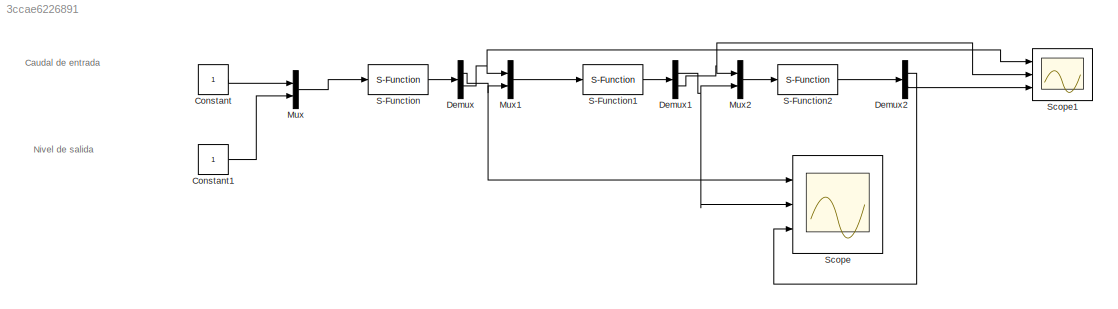
MODEL slx_3ccae6226891
KIND model
BLOCK [Constant] Constant
BLOCK [Constant] Constant1
BLOCK [Demux] Demux
  DisplayOption = bar
  Outputs = 2
  Ports = [1, 2]
BLOCK [Demux] Demux1
  DisplayOption = bar
  Outputs = 2
  Ports = [1, 2]
BLOCK [Demux] Demux2
  DisplayOption = bar
  Outputs = 2
  Ports = [1, 2]
BLOCK [Mux] Mux
  DisplayOption = bar
  Inputs = 2
  Ports = [2, 1]
BLOCK [Mux] Mux1
  DisplayOption = bar
  Inputs = 2
  Ports = [2, 1]
BLOCK [Mux] Mux2
  DisplayOption = bar
  Inputs = 2
  Ports = [2, 1]
BLOCK [S-Function] S-Function
  EnableBusSupport = off
  FunctionName = tanque
  Parameters = 1 8 1 5
  Ports = [1, 1]
  SFunctionDeploymentMode = off
BLOCK [S-Function] S-Function1
  EnableBusSupport = off
  FunctionName = tanque
  Parameters = 1 8 1 3
  Ports = [1, 1]
  SFunctionDeploymentMode = off
BLOCK [S-Function] S-Function2
  EnableBusSupport = off
  FunctionName = tanque
  Parameters = 10 8 1 6
  Ports = [1, 1]
  SFunctionDeploymentMode = off
BLOCK [Scope] Scope
  DataFormat = StructureWithTime
  Decimation = 1
  Grid = on
  LimitDataPoints = off
  MaxDataPoints = 5000
  NumInputPorts = 3
  Ports = [3]
  SampleInput = off
  SampleTime = -1
  SaveName = ScopeData
  SaveToWorkspace = off
  ShowLegends = off
  TickLabels = OneTimeTick
  TimeRange = auto
  YMax = 8.74546~5~5
  YMin = 1.29084~-5~-5
  ZoomMode = on
BLOCK [Scope] Scope1
  DataFormat = StructureWithTime
  Decimation = 1
  Grid = on
  LimitDataPoints = off
  MaxDataPoints = 5000
  NumInputPorts = 3
  Ports = [3]
  SampleInput = off
  SampleTime = -1
  SaveName = ScopeData1
  SaveToWorkspace = off
  ShowLegends = off
  TickLabels = OneTimeTick
  TimeRange = auto
  YMax = 2.22205~5~5
  YMin = 0.00156~-5~-5
  ZoomMode = on
ANNOTATION (root): Caudal de entrada
ANNOTATION (root): Nivel de salida
LINE Constant1:1 -> Mux:2
LINE Constant:1 -> Mux:1
NET Demux1:1 -> Mux2:2, Scope:2
NET Demux1:2 -> Mux2:1, Scope1:2
LINE Demux2:1 -> Scope:3
LINE Demux2:2 -> Scope1:3
NET Demux:1 -> Mux1:2, Scope:1
NET Demux:2 -> Mux1:1, Scope1:1
LINE Mux1:1 -> S-Function1:1
LINE Mux2:1 -> S-Function2:1
LINE Mux:1 -> S-Function:1
LINE S-Function1:1 -> Demux1:1
LINE S-Function2:1 -> Demux2:1
LINE S-Function:1 -> Demux:1
note: NET lines group one-source signal fan-out (src -> all destinations, sorted); 1:1 wires keep LINE
